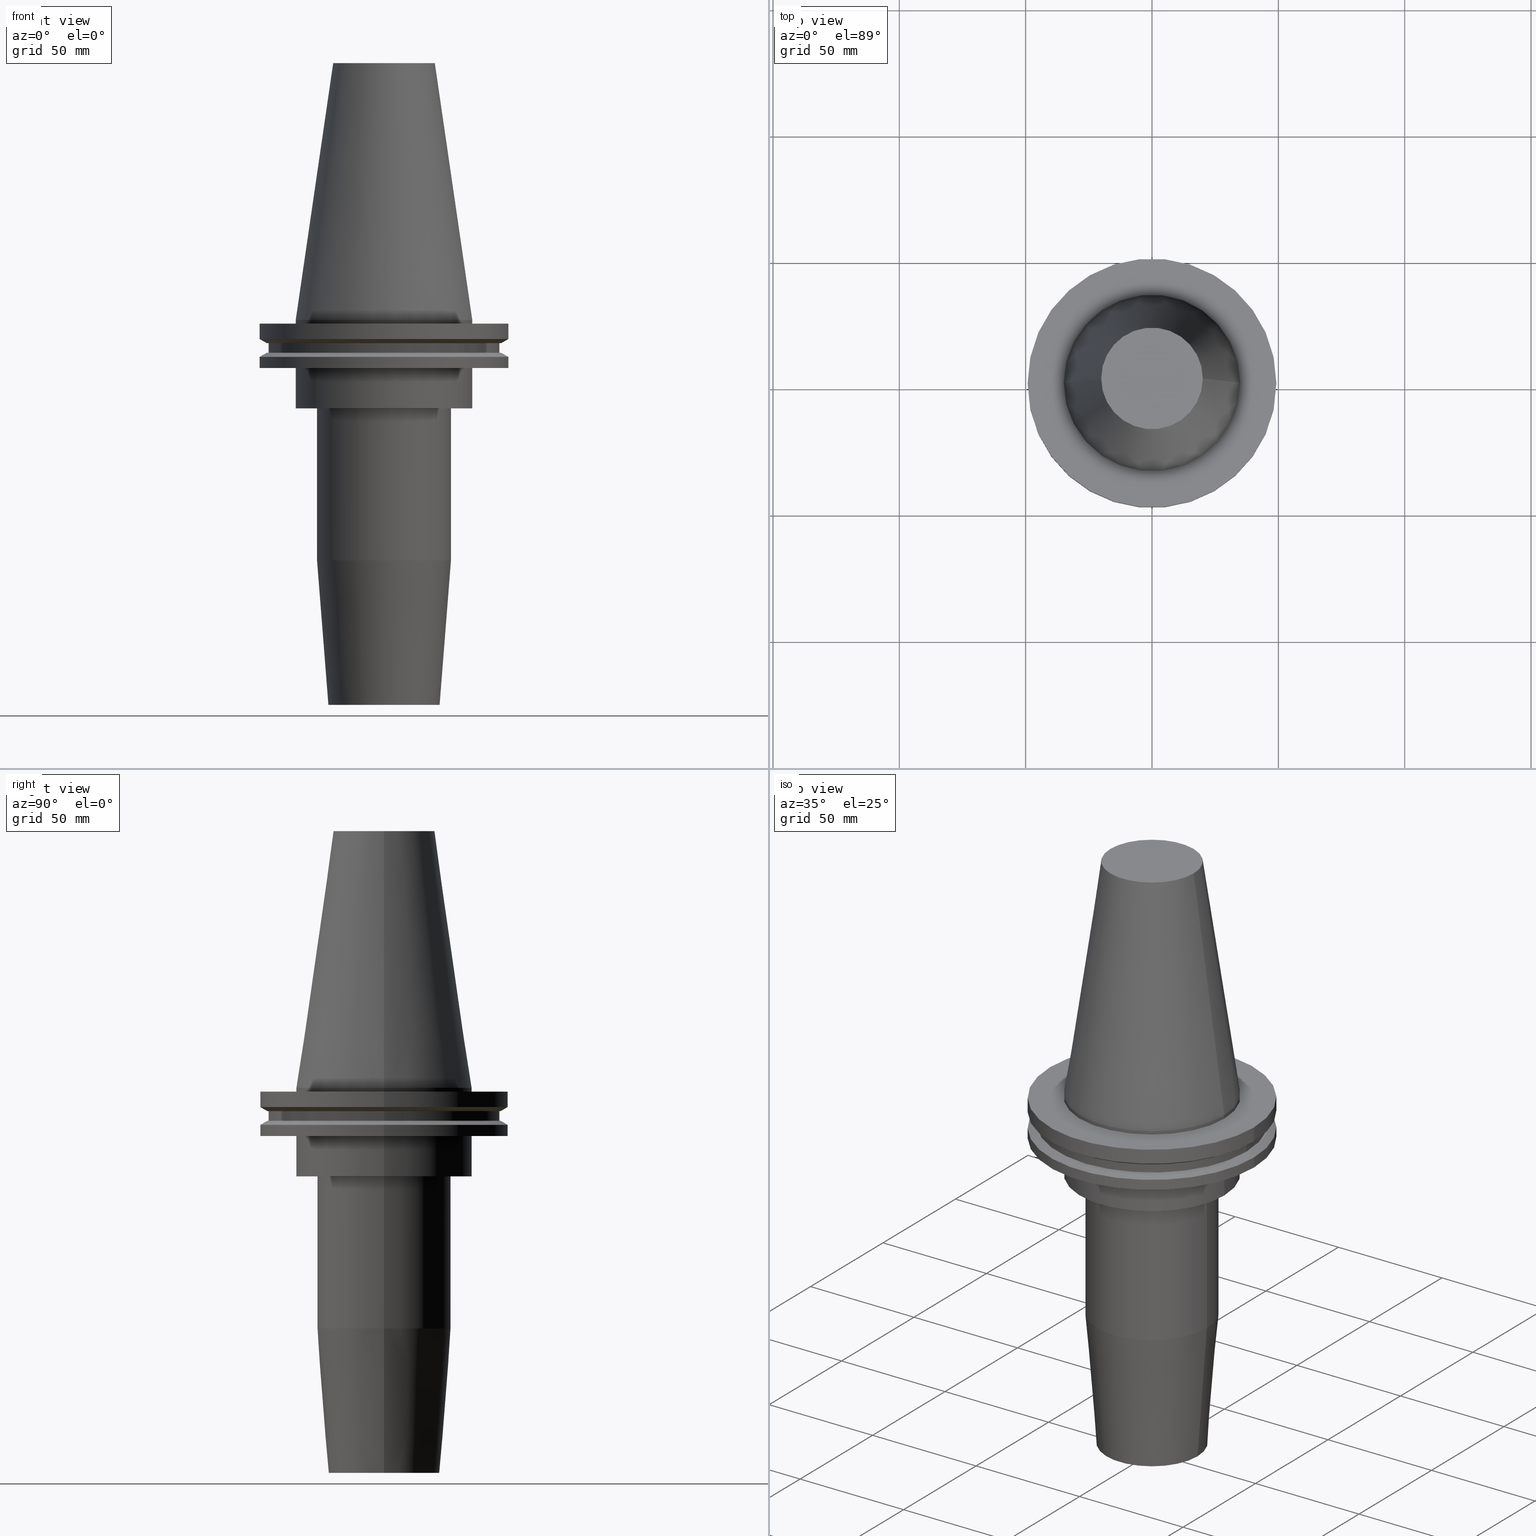
[diagram: canonical four-view strip — front | top / right | iso, engineering-drawing reading convention]
A machine part, canonical four-view strip (front | top / right | iso — engineering-drawing reading convention). The complete STEP part file that produces these views, byte-faithful:
ISO-10303-21;
HEADER;
FILE_DESCRIPTION (( 'STEP AP203' ),
    '1' );
FILE_NAME ('BCV50-SF1_000-6.stp',
    '2022-03-03T17:22:36',
    ( '' ),
    ( '' ),
    'SwSTEP 2.0',
    'SolidWorks 2021',
    '' );
FILE_SCHEMA (( 'CONFIG_CONTROL_DESIGN' ));
ENDSEC;

DATA;
#1 = LINE ( 'NONE', #600, #350 ) ;
#2 = VERTEX_POINT ( 'NONE', #526 ) ;
#3 = PERSON_AND_ORGANIZATION ( #268, #581 ) ;
#4 = ORIENTED_EDGE ( 'NONE', *, *, #688, .F. ) ;
#5 = DIRECTION ( 'NONE',  ( 1.000000000000000000, 0.000000000000000000, 0.000000000000000000 ) ) ;
#6 = CARTESIAN_POINT ( 'NONE',  ( 0.000000000000000000, 0.000000000000000000, -14.65761014474876944 ) ) ;
#7 = CONICAL_SURFACE ( 'NONE', #386, 49.21499999999998920, 1.047197551196554333 ) ;
#8 = AXIS2_PLACEMENT_3D ( 'NONE', #44, #56, #716 ) ;
#9 = CIRCLE ( 'NONE', #306, 49.21499999999999631 ) ;
#10 = LINE ( 'NONE', #65, #804 ) ;
#11 = COORDINATED_UNIVERSAL_TIME_OFFSET ( 6, 0, .BEHIND. ) ;
#12 = DIRECTION ( 'NONE',  ( -0.000000000000000000, -0.000000000000000000, 1.000000000000000000 ) ) ;
#13 = ADVANCED_FACE ( 'NONE', ( #736 ), #7, .T. ) ;
#14 = CYLINDRICAL_SURFACE ( 'NONE', #409, 49.21499999999998920 ) ;
#15 = AXIS2_PLACEMENT_3D ( 'NONE', #219, #735, #89 ) ;
#16 = DIRECTION ( 'NONE',  ( 0.8660254037844169472, 1.060575238724880168E-16, -0.5000000000000375255 ) ) ;
#17 = EDGE_LOOP ( 'NONE', ( #792, #234 ) ) ;
#18 = EDGE_CURVE ( 'NONE', #53, #544, #203, .T. ) ;
#19 = CARTESIAN_POINT ( 'NONE',  ( 0.000000000000000000, 0.000000000000000000, -105.4000000000000199 ) ) ;
#20 = CIRCLE ( 'NONE', #680, 49.21499999999998920 ) ;
#21 = AXIS2_PLACEMENT_3D ( 'NONE', #26, #434, #298 ) ;
#22 = FACE_BOUND ( 'NONE', #313, .T. ) ;
#23 = ORIENTED_EDGE ( 'NONE', *, *, #640, .F. ) ;
#24 = CARTESIAN_POINT ( 'NONE',  ( 34.92499999999999005, 4.277078946022130098E-15, 0.000000000000000000 ) ) ;
#25 = ADVANCED_FACE ( 'NONE', ( #602, #134 ), #282, .F. ) ;
#26 = CARTESIAN_POINT ( 'NONE',  ( 0.000000000000000000, 0.000000000000000000, -35.04999999999999716 ) ) ;
#27 = ORIENTED_EDGE ( 'NONE', *, *, #110, .T. ) ;
#28 = DIRECTION ( 'NONE',  ( -0.000000000000000000, -0.000000000000000000, 1.000000000000000000 ) ) ;
#29 = FACE_OUTER_BOUND ( 'NONE', #835, .T. ) ;
#30 = FACE_BOUND ( 'NONE', #448, .T. ) ;
#31 = ORIENTED_EDGE ( 'NONE', *, *, #237, .F. ) ;
#32 = DIRECTION ( 'NONE',  ( -0.000000000000000000, -0.000000000000000000, 1.000000000000000000 ) ) ;
#33 = PRODUCT_RELATED_PRODUCT_CATEGORY ( 'detail', '', ( #59 ) ) ;
#34 = CARTESIAN_POINT ( 'NONE',  ( 0.000000000000000000, 0.000000000000000000, -9.204999999999991189 ) ) ;
#35 = AXIS2_PLACEMENT_3D ( 'NONE', #708, #329, #700 ) ;
#36 = CARTESIAN_POINT ( 'NONE',  ( 0.000000000000000000, 0.000000000000000000, 0.000000000000000000 ) ) ;
#37 = DIRECTION ( 'NONE',  ( -0.000000000000000000, -0.000000000000000000, 1.000000000000000000 ) ) ;
#38 = DIRECTION ( 'NONE',  ( 1.000000000000000000, 0.000000000000000000, 0.000000000000000000 ) ) ;
#39 = DIRECTION ( 'NONE',  ( -0.8660254037844273833, 1.060575238724893110E-16, 0.5000000000000195399 ) ) ;
#40 = EDGE_CURVE ( 'NONE', #544, #53, #458, .T. ) ;
#41 = DIRECTION ( 'NONE',  ( 1.000000000000000000, 0.000000000000000000, 0.000000000000000000 ) ) ;
#42 = AXIS2_PLACEMENT_3D ( 'NONE', #80, #358, #231 ) ;
#43 = ORIENTED_EDGE ( 'NONE', *, *, #133, .T. ) ;
#44 = CARTESIAN_POINT ( 'NONE',  ( 0.000000000000000000, 0.000000000000000000, 0.000000000000000000 ) ) ;
#45 = APPROVAL_ROLE ( '' ) ;
#46 = VERTEX_POINT ( 'NONE', #533 ) ;
#47 = FACE_BOUND ( 'NONE', #488, .T. ) ;
#48 = ORIENTED_EDGE ( 'NONE', *, *, #791, .F. ) ;
#49 = AXIS2_PLACEMENT_3D ( 'NONE', #436, #816, #229 ) ;
#50 = EDGE_CURVE ( 'NONE', #371, #171, #468, .T. ) ;
#51 = ORIENTED_EDGE ( 'NONE', *, *, #300, .T. ) ;
#52 = CARTESIAN_POINT ( 'NONE',  ( 0.000000000000000000, 0.000000000000000000, -152.4000000000000057 ) ) ;
#53 = VERTEX_POINT ( 'NONE', #210 ) ;
#54 = CYLINDRICAL_SURFACE ( 'NONE', #353, 12.70000000000002061 ) ;
#55 = ORIENTED_EDGE ( 'NONE', *, *, #624, .F. ) ;
#56 = DIRECTION ( 'NONE',  ( -0.000000000000000000, -0.000000000000000000, 1.000000000000000000 ) ) ;
#57 = CC_DESIGN_SECURITY_CLASSIFICATION ( #674, ( #369 ) ) ;
#58 = ORIENTED_EDGE ( 'NONE', *, *, #18, .T. ) ;
#59 = PRODUCT ( 'BCV50-SF1_000-6', 'BCV50-SF1_000-6', '', ( #572 ) ) ;
#60 = CARTESIAN_POINT ( 'NONE',  ( 0.000000000000000000, 0.000000000000000000, -19.04999999999999716 ) ) ;
#61 = AXIS2_PLACEMENT_3D ( 'NONE', #132, #214, #135 ) ;
#62 = VERTEX_POINT ( 'NONE', #472 ) ;
#63 = AXIS2_PLACEMENT_3D ( 'NONE', #790, #590, #464 ) ;
#64 = AXIS2_PLACEMENT_3D ( 'NONE', #34, #691, #98 ) ;
#65 = CARTESIAN_POINT ( 'NONE',  ( 22.00000000000000000, 0.000000000000000000, -152.4000000000000057 ) ) ;
#66 = VERTEX_POINT ( 'NONE', #729 ) ;
#67 = CALENDAR_DATE ( 2022, 3, 3 ) ;
#68 = ADVANCED_FACE ( 'NONE', ( #139 ), #671, .T. ) ;
#69 = ORIENTED_EDGE ( 'NONE', *, *, #640, .T. ) ;
#70 = DIRECTION ( 'NONE',  ( -0.000000000000000000, -0.000000000000000000, 1.000000000000000000 ) ) ;
#71 = ORIENTED_EDGE ( 'NONE', *, *, #594, .F. ) ;
#72 = FACE_OUTER_BOUND ( 'NONE', #255, .T. ) ;
#73 = DIRECTION ( 'NONE',  ( 1.000000000000000000, 0.000000000000000000, 0.000000000000000000 ) ) ;
#74 = AXIS2_PLACEMENT_3D ( 'NONE', #538, #665, #73 ) ;
#75 = VECTOR ( 'NONE', #649, 1000.000000000000000 ) ;
#76 = CIRCLE ( 'NONE', #63, 49.21500000000000341 ) ;
#77 = ADVANCED_FACE ( 'NONE', ( #605 ), #14, .T. ) ;
#78 = FACE_OUTER_BOUND ( 'NONE', #579, .T. ) ;
#79 = CARTESIAN_POINT ( 'NONE',  ( 0.000000000000000000, 0.000000000000000000, 101.5999999999999943 ) ) ;
#80 = CARTESIAN_POINT ( 'NONE',  ( 0.000000000000000000, 0.000000000000000000, -13.05499999999999794 ) ) ;
#81 = LINE ( 'NONE', #607, #669 ) ;
#82 = PLANE ( 'NONE',  #320 ) ;
#83 = PERSON_AND_ORGANIZATION ( #268, #581 ) ;
#84 = CARTESIAN_POINT ( 'NONE',  ( -22.00000000000000000, 2.694222958124176809E-15, -152.4000000000000057 ) ) ;
#85 = CARTESIAN_POINT ( 'NONE',  ( 0.000000000000000000, 0.000000000000000000, 101.5999999999999801 ) ) ;
#86 = ADVANCED_FACE ( 'NONE', ( #673 ), #82, .F. ) ;
#87 = CARTESIAN_POINT ( 'NONE',  ( 0.000000000000000000, 0.000000000000000000, -7.602389855251287187 ) ) ;
#88 = VECTOR ( 'NONE', #703, 1000.000000000000000 ) ;
#89 = DIRECTION ( 'NONE',  ( 1.000000000000000000, 0.000000000000000000, 0.000000000000000000 ) ) ;
#90 = EDGE_LOOP ( 'NONE', ( #548, #705 ) ) ;
#91 = CYLINDRICAL_SURFACE ( 'NONE', #711, 34.92499999999999005 ) ;
#92 = ADVANCED_FACE ( 'NONE', ( #478 ), #242, .T. ) ;
#93 = DIRECTION ( 'NONE',  ( 1.000000000000000000, 0.000000000000000000, 0.000000000000000000 ) ) ;
#94 = DIRECTION ( 'NONE',  ( -0.000000000000000000, -0.000000000000000000, 1.000000000000000000 ) ) ;
#95 = ORIENTED_EDGE ( 'NONE', *, *, #330, .F. ) ;
#96 = CYLINDRICAL_SURFACE ( 'NONE', #626, 12.70000000000002061 ) ;
#97 = FACE_OUTER_BOUND ( 'NONE', #99, .T. ) ;
#98 = DIRECTION ( 'NONE',  ( 1.000000000000000000, 0.000000000000000000, 0.000000000000000000 ) ) ;
#99 = EDGE_LOOP ( 'NONE', ( #272, #331, #800, #598 ) ) ;
#100 = DIRECTION ( 'NONE',  ( 1.000000000000000000, 0.000000000000000000, 0.000000000000000000 ) ) ;
#101 = PRODUCT_DEFINITION ( 'UNKNOWN', '', #369, #367 ) ;
#102 = CARTESIAN_POINT ( 'NONE',  ( 49.21499999999998920, 0.000000000000000000, 101.5999999999999943 ) ) ;
#103 = ORIENTED_EDGE ( 'NONE', *, *, #195, .T. ) ;
#104 = EDGE_CURVE ( 'NONE', #632, #470, #621, .T. ) ;
#105 = AXIS2_PLACEMENT_3D ( 'NONE', #465, #199, #722 ) ;
#106 = CIRCLE ( 'NONE', #217, 49.21499999999998920 ) ;
#107 = CARTESIAN_POINT ( 'NONE',  ( 12.70000000000003304, 0.000000000000000000, -105.4000000000000199 ) ) ;
#108 = DIRECTION ( 'NONE',  ( -0.000000000000000000, -0.000000000000000000, 1.000000000000000000 ) ) ;
#109 = VERTEX_POINT ( 'NONE', #107 ) ;
#110 = EDGE_CURVE ( 'NONE', #504, #853, #709, .T. ) ;
#111 = CARTESIAN_POINT ( 'NONE',  ( 0.000000000000000000, 0.000000000000000000, -152.4000000000000057 ) ) ;
#112 = APPROVAL_STATUS ( 'not_yet_approved' ) ;
#113 = AXIS2_PLACEMENT_3D ( 'NONE', #117, #641, #41 ) ;
#114 = ORIENTED_EDGE ( 'NONE', *, *, #212, .T. ) ;
#115 = CARTESIAN_POINT ( 'NONE',  ( 0.000000000000000000, 0.000000000000000000, -95.22207868720845170 ) ) ;
#116 = ADVANCED_FACE ( 'NONE', ( #821 ), #140, .T. ) ;
#117 = CARTESIAN_POINT ( 'NONE',  ( 0.000000000000000000, 0.000000000000000000, -19.04999999999999716 ) ) ;
#118 = ORIENTED_EDGE ( 'NONE', *, *, #650, .F. ) ;
#119 = FACE_OUTER_BOUND ( 'NONE', #743, .T. ) ;
#120 = EDGE_CURVE ( 'NONE', #632, #371, #187, .T. ) ;
#121 = ORIENTED_EDGE ( 'NONE', *, *, #734, .F. ) ;
#122 = DIRECTION ( 'NONE',  ( 0.000000000000000000, -0.000000000000000000, 1.000000000000000000 ) ) ;
#123 = EDGE_LOOP ( 'NONE', ( #568, #4 ) ) ;
#124 = APPROVAL ( #283, 'UNSPECIFIED' ) ;
#125 = CIRCLE ( 'NONE', #717, 49.21500000000000341 ) ;
#126 = EDGE_LOOP ( 'NONE', ( #252, #782 ) ) ;
#127 = CYLINDRICAL_SURFACE ( 'NONE', #667, 26.50000000000000000 ) ;
#128 = ORIENTED_EDGE ( 'NONE', *, *, #137, .F. ) ;
#129 = LINE ( 'NONE', #275, #777 ) ;
#130 = EDGE_CURVE ( 'NONE', #450, #109, #666, .T. ) ;
#131 = CARTESIAN_POINT ( 'NONE',  ( -45.64500000000000313, 5.589900314708094957E-15, -13.05499999999999794 ) ) ;
#132 = CARTESIAN_POINT ( 'NONE',  ( 0.000000000000000000, 0.000000000000000000, 101.5999999999999943 ) ) ;
#133 = EDGE_CURVE ( 'NONE', #775, #197, #424, .T. ) ;
#134 = FACE_BOUND ( 'NONE', #265, .T. ) ;
#135 = DIRECTION ( 'NONE',  ( 1.000000000000000000, 0.000000000000000000, 0.000000000000000000 ) ) ;
#136 = EDGE_LOOP ( 'NONE', ( #241, #847, #318, #587 ) ) ;
#137 = EDGE_CURVE ( 'NONE', #325, #450, #481, .T. ) ;
#138 = CARTESIAN_POINT ( 'NONE',  ( 26.50000000000000000, 0.000000000000000000, -95.22207868720845170 ) ) ;
#139 = FACE_OUTER_BOUND ( 'NONE', #257, .T. ) ;
#140 = CONICAL_SURFACE ( 'NONE', #157, 22.00000000000000000, 0.07853981633973751431 ) ;
#141 = CIRCLE ( 'NONE', #627, 22.00000000000000000 ) ;
#142 = FACE_OUTER_BOUND ( 'NONE', #523, .T. ) ;
#143 = DIRECTION ( 'NONE',  ( 1.000000000000000000, 0.000000000000000000, 0.000000000000000000 ) ) ;
#144 = FACE_OUTER_BOUND ( 'NONE', #699, .T. ) ;
#145 = CARTESIAN_POINT ( 'NONE',  ( 0.000000000000000000, 45.64500000000000313, -13.05499999999999794 ) ) ;
#146 = VERTEX_POINT ( 'NONE', #830 ) ;
#147 = FACE_BOUND ( 'NONE', #126, .T. ) ;
#148 = CC_DESIGN_PERSON_AND_ORGANIZATION_ASSIGNMENT ( #3, #441, ( #101 ) ) ;
#149 = CARTESIAN_POINT ( 'NONE',  ( 12.70000000000000639, 0.000000000000000000, -152.4000000000000057 ) ) ;
#150 = ORIENTED_EDGE ( 'NONE', *, *, #532, .T. ) ;
#151 = EDGE_CURVE ( 'NONE', #299, #189, #368, .T. ) ;
#152 = DIRECTION ( 'NONE',  ( -0.000000000000000000, -0.000000000000000000, 1.000000000000000000 ) ) ;
#153 = VECTOR ( 'NONE', #39, 1000.000000000000000 ) ;
#154 = CARTESIAN_POINT ( 'NONE',  ( 0.000000000000000000, 0.000000000000000000, -152.4000000000000057 ) ) ;
#155 = AXIS2_PLACEMENT_3D ( 'NONE', #145, #492, #616 ) ;
#156 = CARTESIAN_POINT ( 'NONE',  ( 0.000000000000000000, 0.000000000000000000, -14.65761014474876944 ) ) ;
#157 = AXIS2_PLACEMENT_3D ( 'NONE', #428, #152, #677 ) ;
#158 = DIRECTION ( 'NONE',  ( 0.1443082272672999988, 1.767266086135277066E-17, -0.9895327864921755756 ) ) ;
#159 = CARTESIAN_POINT ( 'NONE',  ( 49.21499999999999631, 0.000000000000000000, 101.5999999999999943 ) ) ;
#160 = DIRECTION ( 'NONE',  ( 1.000000000000000000, 0.000000000000000000, 0.000000000000000000 ) ) ;
#161 = ORIENTED_EDGE ( 'NONE', *, *, #524, .F. ) ;
#162 = CARTESIAN_POINT ( 'NONE',  ( -49.21499999999998920, 6.027099222003697037E-15, -14.65761014474876944 ) ) ;
#163 = CIRCLE ( 'NONE', #42, 46.43919780457007818 ) ;
#164 = CC_DESIGN_APPROVAL ( #235, ( #369 ) ) ;
#165 = EDGE_CURVE ( 'NONE', #2, #66, #687, .T. ) ;
#166 = FACE_OUTER_BOUND ( 'NONE', #455, .T. ) ;
#167 = DIRECTION ( 'NONE',  ( 1.000000000000000000, 0.000000000000000000, 0.000000000000000000 ) ) ;
#168 = APPROVAL_DATE_TIME ( #273, #235 ) ;
#169 = ADVANCED_FACE ( 'NONE', ( #417 ), #96, .F. ) ;
#170 = CIRCLE ( 'NONE', #819, 34.92499999999999716 ) ;
#171 = VERTEX_POINT ( 'NONE', #421 ) ;
#172 = AXIS2_PLACEMENT_3D ( 'NONE', #749, #738, #160 ) ;
#173 = DIRECTION ( 'NONE',  ( -0.000000000000000000, -0.000000000000000000, 1.000000000000000000 ) ) ;
#174 = APPROVAL_STATUS ( 'not_yet_approved' ) ;
#175 = CARTESIAN_POINT ( 'NONE',  ( 0.000000000000000000, 0.000000000000000000, 0.000000000000000000 ) ) ;
#176 = ORIENTED_EDGE ( 'NONE', *, *, #416, .T. ) ;
#177 = DIRECTION ( 'NONE',  ( 1.000000000000000000, 0.000000000000000000, 0.000000000000000000 ) ) ;
#178 = EDGE_CURVE ( 'NONE', #829, #146, #601, .T. ) ;
#179 = AXIS2_PLACEMENT_3D ( 'NONE', #19, #290, #542 ) ;
#180 =( NAMED_UNIT ( * ) PLANE_ANGLE_UNIT ( ) SI_UNIT ( $, .RADIAN. ) );
#181 = ORIENTED_EDGE ( 'NONE', *, *, #195, .F. ) ;
#182 = CARTESIAN_POINT ( 'NONE',  ( 0.000000000000000000, 0.000000000000000000, 0.000000000000000000 ) ) ;
#183 = ADVANCED_FACE ( 'NONE', ( #613 ), #259, .T. ) ;
#184 = ORIENTED_EDGE ( 'NONE', *, *, #532, .F. ) ;
#185 = DIRECTION ( 'NONE',  ( 1.000000000000000000, 0.000000000000000000, 0.000000000000000000 ) ) ;
#186 = ORIENTED_EDGE ( 'NONE', *, *, #560, .T. ) ;
#187 = CIRCLE ( 'NONE', #453, 20.10819343178871321 ) ;
#188 = DIRECTION ( 'NONE',  ( -0.000000000000000000, -0.000000000000000000, 1.000000000000000000 ) ) ;
#189 = VERTEX_POINT ( 'NONE', #162 ) ;
#190 = ORIENTED_EDGE ( 'NONE', *, *, #364, .F. ) ;
#191 = VECTOR ( 'NONE', #485, 1000.000000000000000 ) ;
#192 = ORIENTED_EDGE ( 'NONE', *, *, #480, .F. ) ;
#193 = DIRECTION ( 'NONE',  ( 1.000000000000000000, 0.000000000000000000, 0.000000000000000000 ) ) ;
#194 = VERTEX_POINT ( 'NONE', #431 ) ;
#195 = EDGE_CURVE ( 'NONE', #768, #194, #670, .T. ) ;
#196 = AXIS2_PLACEMENT_3D ( 'NONE', #327, #730, #239 ) ;
#197 = VERTEX_POINT ( 'NONE', #682 ) ;
#198 = DIRECTION ( 'NONE',  ( 1.000000000000000000, 0.000000000000000000, 0.000000000000000000 ) ) ;
#199 = DIRECTION ( 'NONE',  ( 0.000000000000000000, 0.000000000000000000, -1.000000000000000000 ) ) ;
#200 = CARTESIAN_POINT ( 'NONE',  ( 0.000000000000000000, 0.000000000000000000, -9.204999999999991189 ) ) ;
#201 = SHAPE_DEFINITION_REPRESENTATION ( #442, #238 ) ;
#202 = AXIS2_PLACEMENT_3D ( 'NONE', #657, #12, #535 ) ;
#203 = CIRCLE ( 'NONE', #684, 45.64500000000000313 ) ;
#204 = CARTESIAN_POINT ( 'NONE',  ( 0.000000000000000000, 0.000000000000000000, -19.04999999999999716 ) ) ;
#205 = EDGE_CURVE ( 'NONE', #171, #470, #849, .T. ) ;
#206 = ORIENTED_EDGE ( 'NONE', *, *, #411, .T. ) ;
#207 = CONICAL_SURFACE ( 'NONE', #690, 49.21499999999998920, 1.047197551196554333 ) ;
#208 = LINE ( 'NONE', #471, #681 ) ;
#209 = APPROVAL_PERSON_ORGANIZATION ( #452, #261, #511 ) ;
#210 = CARTESIAN_POINT ( 'NONE',  ( -45.64500000000000313, 5.589900314708094957E-15, -9.204999999999991189 ) ) ;
#211 = DATE_TIME_ROLE ( 'classification_date' ) ;
#212 = EDGE_CURVE ( 'NONE', #771, #446, #390, .T. ) ;
#213 = EDGE_LOOP ( 'NONE', ( #512, #43, #663, #536 ) ) ;
#214 = DIRECTION ( 'NONE',  ( -0.000000000000000000, -0.000000000000000000, 1.000000000000000000 ) ) ;
#215 = DIRECTION ( 'NONE',  ( 1.000000000000000000, 0.000000000000000000, 0.000000000000000000 ) ) ;
#216 = CALENDAR_DATE ( 2022, 3, 3 ) ;
#217 = AXIS2_PLACEMENT_3D ( 'NONE', #156, #755, #370 ) ;
#218 = CARTESIAN_POINT ( 'NONE',  ( -34.92499999999999716, 4.277078946022130887E-15, -35.04999999999999716 ) ) ;
#219 = CARTESIAN_POINT ( 'NONE',  ( 0.000000000000000000, 0.000000000000000000, -1.499999999999987566 ) ) ;
#220 = EDGE_LOOP ( 'NONE', ( #340, #103 ) ) ;
#221 = CARTESIAN_POINT ( 'NONE',  ( 0.000000000000000000, 22.00000000000000000, -152.4000000000000057 ) ) ;
#222 = ADVANCED_FACE ( 'NONE', ( #760 ), #91, .T. ) ;
#223 = DIRECTION ( 'NONE',  ( -0.000000000000000000, -0.000000000000000000, 1.000000000000000000 ) ) ;
#224 = ORIENTED_EDGE ( 'NONE', *, *, #336, .T. ) ;
#225 = CARTESIAN_POINT ( 'NONE',  ( 0.000000000000000000, 0.000000000000000000, -35.04999999999999716 ) ) ;
#226 = DIRECTION ( 'NONE',  ( 1.000000000000000000, 0.000000000000000000, 0.000000000000000000 ) ) ;
#227 = PLANE ( 'NONE',  #155 ) ;
#228 = EDGE_LOOP ( 'NONE', ( #51, #651, #295, #459 ) ) ;
#229 = DIRECTION ( 'NONE',  ( 1.000000000000000000, 0.000000000000000000, 0.000000000000000000 ) ) ;
#230 = AXIS2_PLACEMENT_3D ( 'NONE', #79, #352, #143 ) ;
#231 = DIRECTION ( 'NONE',  ( 1.000000000000000000, 0.000000000000000000, 0.000000000000000000 ) ) ;
#232 = CONICAL_SURFACE ( 'NONE', #348, 22.00000000000000000, 0.07853981633973751431 ) ;
#233 = FACE_OUTER_BOUND ( 'NONE', #518, .T. ) ;
#234 = ORIENTED_EDGE ( 'NONE', *, *, #416, .F. ) ;
#235 = APPROVAL ( #112, 'UNSPECIFIED' ) ;
#236 = DIRECTION ( 'NONE',  ( 1.000000000000000000, 0.000000000000000000, 0.000000000000000000 ) ) ;
#237 = EDGE_CURVE ( 'NONE', #194, #768, #9, .T. ) ;
#238 = ADVANCED_BREP_SHAPE_REPRESENTATION ( 'BCV50-SF1_000-6', ( #683, #618 ), #243 ) ;
#239 = DIRECTION ( 'NONE',  ( 1.000000000000000000, 0.000000000000000000, 0.000000000000000000 ) ) ;
#240 = DIRECTION ( 'NONE',  ( 0.000000000000000000, 0.000000000000000000, -1.000000000000000000 ) ) ;
#241 = ORIENTED_EDGE ( 'NONE', *, *, #264, .F. ) ;
#242 = CYLINDRICAL_SURFACE ( 'NONE', #789, 26.50000000000000000 ) ;
#243 =( GEOMETRIC_REPRESENTATION_CONTEXT ( 3 ) GLOBAL_UNCERTAINTY_ASSIGNED_CONTEXT ( ( #578 ) ) GLOBAL_UNIT_ASSIGNED_CONTEXT ( ( #635, #180, #501 ) ) REPRESENTATION_CONTEXT ( 'NONE', 'WORKASPACE' ) );
#244 = DATE_TIME_ROLE ( 'creation_date' ) ;
#245 = ORIENTED_EDGE ( 'NONE', *, *, #588, .T. ) ;
#246 = DIRECTION ( 'NONE',  ( -0.000000000000000000, -0.000000000000000000, 1.000000000000000000 ) ) ;
#247 = CARTESIAN_POINT ( 'NONE',  ( 0.000000000000000000, 0.000000000000000000, 101.5999999999999943 ) ) ;
#248 = ADVANCED_FACE ( 'NONE', ( #47, #519 ), #389, .F. ) ;
#249 = ORIENTED_EDGE ( 'NONE', *, *, #396, .T. ) ;
#250 = CARTESIAN_POINT ( 'NONE',  ( 0.000000000000000000, 0.000000000000000000, -1.499999999999987566 ) ) ;
#251 = ORIENTED_EDGE ( 'NONE', *, *, #274, .F. ) ;
#252 = ORIENTED_EDGE ( 'NONE', *, *, #634, .T. ) ;
#253 = EDGE_CURVE ( 'NONE', #420, #838, #170, .T. ) ;
#254 = DIRECTION ( 'NONE',  ( -0.000000000000000000, -0.000000000000000000, 1.000000000000000000 ) ) ;
#255 = EDGE_LOOP ( 'NONE', ( #184, #462, #825, #181 ) ) ;
#256 = DIRECTION ( 'NONE',  ( 1.000000000000000000, 0.000000000000000000, 0.000000000000000000 ) ) ;
#257 = EDGE_LOOP ( 'NONE', ( #186, #263, #620, #443 ) ) ;
#258 = ORIENTED_EDGE ( 'NONE', *, *, #688, .T. ) ;
#259 = CONICAL_SURFACE ( 'NONE', #746, 34.92499999999999005, 0.1448138465474119452 ) ;
#260 = DIRECTION ( 'NONE',  ( -0.000000000000000000, -0.000000000000000000, 1.000000000000000000 ) ) ;
#261 = APPROVAL ( #174, 'UNSPECIFIED' ) ;
#262 = CIRCLE ( 'NONE', #456, 46.43919780457007818 ) ;
#263 = ORIENTED_EDGE ( 'NONE', *, *, #614, .T. ) ;
#264 = EDGE_CURVE ( 'NONE', #829, #53, #457, .T. ) ;
#265 = EDGE_LOOP ( 'NONE', ( #818, #570 ) ) ;
#266 = DIRECTION ( 'NONE',  ( 1.000000000000000000, 0.000000000000000000, 0.000000000000000000 ) ) ;
#267 = ORIENTED_EDGE ( 'NONE', *, *, #624, .T. ) ;
#268 = PERSON ( 'UNSPECIFIED', 'UNSPECIFIED', 'UNSPECIFIED', ('UNSPECIFIED'), ('UNSPECIFIED'), ('UNSPECIFIED') ) ;
#269 = ADVANCED_FACE ( 'NONE', ( #767 ), #127, .T. ) ;
#270 = CIRCLE ( 'NONE', #812, 12.70000000000000639 ) ;
#271 = LINE ( 'NONE', #277, #612 ) ;
#272 = ORIENTED_EDGE ( 'NONE', *, *, #411, .F. ) ;
#273 = DATE_AND_TIME ( #67, #704 ) ;
#274 = EDGE_CURVE ( 'NONE', #853, #504, #571, .T. ) ;
#275 = CARTESIAN_POINT ( 'NONE',  ( 49.21499999999998920, 6.027099222003697037E-15, -14.65761014474876944 ) ) ;
#276 = AXIS2_PLACEMENT_3D ( 'NONE', #36, #246, #100 ) ;
#277 = CARTESIAN_POINT ( 'NONE',  ( -49.21499999999998920, 0.000000000000000000, -14.65761014474876944 ) ) ;
#278 = DIRECTION ( 'NONE',  ( 0.000000000000000000, 0.000000000000000000, -1.000000000000000000 ) ) ;
#279 = DATE_AND_TIME ( #793, #660 ) ;
#280 = AXIS2_PLACEMENT_3D ( 'NONE', #837, #562, #770 ) ;
#281 = CARTESIAN_POINT ( 'NONE',  ( -12.70000000000003304, 1.555301434917142377E-15, -105.4000000000000199 ) ) ;
#282 = PLANE ( 'NONE',  #74 ) ;
#283 = APPROVAL_STATUS ( 'not_yet_approved' ) ;
#284 = CARTESIAN_POINT ( 'NONE',  ( 49.21500000000000341, 0.000000000000000000, -7.602389855251287187 ) ) ;
#285 = CARTESIAN_POINT ( 'NONE',  ( 0.000000000000000000, 0.000000000000000000, -13.05499999999999794 ) ) ;
#286 = DIRECTION ( 'NONE',  ( -1.000000000000000000, 0.000000000000000000, 0.000000000000000000 ) ) ;
#287 = CC_DESIGN_DATE_AND_TIME_ASSIGNMENT ( #721, #244, ( #101 ) ) ;
#288 = EDGE_CURVE ( 'NONE', #504, #771, #314, .T. ) ;
#289 = AXIS2_PLACEMENT_3D ( 'NONE', #469, #412, #725 ) ;
#290 = DIRECTION ( 'NONE',  ( -0.000000000000000000, -0.000000000000000000, 1.000000000000000000 ) ) ;
#291 = DIRECTION ( 'NONE',  ( 0.8660254037844273833, 0.000000000000000000, 0.5000000000000195399 ) ) ;
#292 = ORIENTED_EDGE ( 'NONE', *, *, #341, .T. ) ;
#293 = DIRECTION ( 'NONE',  ( -1.000000000000000000, 0.000000000000000000, 0.000000000000000000 ) ) ;
#294 = LINE ( 'NONE', #487, #555 ) ;
#295 = ORIENTED_EDGE ( 'NONE', *, *, #719, .F. ) ;
#296 = CIRCLE ( 'NONE', #113, 34.92499999999999716 ) ;
#297 = DIRECTION ( 'NONE',  ( 1.000000000000000000, 0.000000000000000000, 0.000000000000000000 ) ) ;
#298 = DIRECTION ( 'NONE',  ( 1.000000000000000000, 0.000000000000000000, 0.000000000000000000 ) ) ;
#299 = VERTEX_POINT ( 'NONE', #444 ) ;
#300 = EDGE_CURVE ( 'NONE', #576, #299, #20, .T. ) ;
#301 = DIRECTION ( 'NONE',  ( 1.000000000000000000, 0.000000000000000000, 0.000000000000000000 ) ) ;
#302 = VECTOR ( 'NONE', #740, 1000.000000000000000 ) ;
#303 = LINE ( 'NONE', #556, #311 ) ;
#304 = AXIS2_PLACEMENT_3D ( 'NONE', #834, #586, #256 ) ;
#305 = LINE ( 'NONE', #557, #763 ) ;
#306 = AXIS2_PLACEMENT_3D ( 'NONE', #250, #254, #177 ) ;
#307 = CARTESIAN_POINT ( 'NONE',  ( 0.000000000000000000, 0.000000000000000000, 0.000000000000000000 ) ) ;
#308 = COORDINATED_UNIVERSAL_TIME_OFFSET ( 6, 0, .BEHIND. ) ;
#309 = ORIENTED_EDGE ( 'NONE', *, *, #205, .F. ) ;
#310 = DIRECTION ( 'NONE',  ( -0.000000000000000000, -0.000000000000000000, 1.000000000000000000 ) ) ;
#311 = VECTOR ( 'NONE', #486, 1000.000000000000000 ) ;
#312 = LOCAL_TIME ( 11, 22, 36.00000000000000000, #758 ) ;
#313 = EDGE_LOOP ( 'NONE', ( #642, #58 ) ) ;
#314 = LINE ( 'NONE', #772, #517 ) ;
#315 = ORIENTED_EDGE ( 'NONE', *, *, #650, .T. ) ;
#316 = ADVANCED_FACE ( 'NONE', ( #440 ), #449, .T. ) ;
#317 = PERSON_AND_ORGANIZATION ( #268, #581 ) ;
#318 = ORIENTED_EDGE ( 'NONE', *, *, #524, .T. ) ;
#319 = DIRECTION ( 'NONE',  ( 1.000000000000000000, 0.000000000000000000, 0.000000000000000000 ) ) ;
#320 = AXIS2_PLACEMENT_3D ( 'NONE', #357, #807, #608 ) ;
#321 = ORIENTED_EDGE ( 'NONE', *, *, #396, .F. ) ;
#322 = CC_DESIGN_PERSON_AND_ORGANIZATION_ASSIGNMENT ( #83, #539, ( #674 ) ) ;
#323 = ORIENTED_EDGE ( 'NONE', *, *, #120, .F. ) ;
#324 = DIRECTION ( 'NONE',  ( 1.000000000000000000, 0.000000000000000000, 0.000000000000000000 ) ) ;
#325 = VERTEX_POINT ( 'NONE', #645 ) ;
#326 = APPROVAL_PERSON_ORGANIZATION ( #656, #235, #45 ) ;
#327 = CARTESIAN_POINT ( 'NONE',  ( 0.000000000000000000, 0.000000000000000000, -14.65761014474876944 ) ) ;
#328 = EDGE_LOOP ( 'NONE', ( #394, #121, #499, #840 ) ) ;
#329 = DIRECTION ( 'NONE',  ( -0.000000000000000000, -0.000000000000000000, 1.000000000000000000 ) ) ;
#330 = EDGE_CURVE ( 'NONE', #470, #171, #437, .T. ) ;
#331 = ORIENTED_EDGE ( 'NONE', *, *, #422, .T. ) ;
#332 = EDGE_LOOP ( 'NONE', ( #128, #707, #292, #398 ) ) ;
#333 = CIRCLE ( 'NONE', #820, 46.43919780457007818 ) ;
#334 = CARTESIAN_POINT ( 'NONE',  ( 0.000000000000000000, 0.000000000000000000, -19.04999999999999716 ) ) ;
#335 = CONICAL_SURFACE ( 'NONE', #337, 34.92499999999999005, 0.1448138465474119452 ) ;
#336 = EDGE_CURVE ( 'NONE', #371, #632, #761, .T. ) ;
#337 = AXIS2_PLACEMENT_3D ( 'NONE', #547, #622, #813 ) ;
#338 = ORIENTED_EDGE ( 'NONE', *, *, #723, .F. ) ;
#339 = DIRECTION ( 'NONE',  ( 0.07845909572783764385, 0.000000000000000000, 0.9969173337331286300 ) ) ;
#340 = ORIENTED_EDGE ( 'NONE', *, *, #237, .T. ) ;
#341 = EDGE_CURVE ( 'NONE', #623, #109, #839, .T. ) ;
#342 = CARTESIAN_POINT ( 'NONE',  ( 0.000000000000000000, 0.000000000000000000, -13.05499999999999794 ) ) ;
#343 = DIRECTION ( 'NONE',  ( -0.000000000000000000, -0.000000000000000000, 1.000000000000000000 ) ) ;
#344 = APPROVAL_DATE_TIME ( #473, #124 ) ;
#345 = ADVANCED_FACE ( 'NONE', ( #119 ), #232, .T. ) ;
#346 = CARTESIAN_POINT ( 'NONE',  ( -34.92499999999999005, 4.277078946022130098E-15, -1.499999999999987566 ) ) ;
#347 = AXIS2_PLACEMENT_3D ( 'NONE', #378, #360, #167 ) ;
#348 = AXIS2_PLACEMENT_3D ( 'NONE', #52, #583, #324 ) ;
#349 = DIRECTION ( 'NONE',  ( 1.000000000000000000, 0.000000000000000000, 0.000000000000000000 ) ) ;
#350 = VECTOR ( 'NONE', #794, 1000.000000000000000 ) ;
#351 = DIRECTION ( 'NONE',  ( 1.000000000000000000, 0.000000000000000000, 0.000000000000000000 ) ) ;
#352 = DIRECTION ( 'NONE',  ( -0.000000000000000000, -0.000000000000000000, 1.000000000000000000 ) ) ;
#353 = AXIS2_PLACEMENT_3D ( 'NONE', #175, #108, #185 ) ;
#354 = DIRECTION ( 'NONE',  ( -0.8660254037844169472, 0.000000000000000000, -0.5000000000000375255 ) ) ;
#355 = APPROVAL_PERSON_ORGANIZATION ( #801, #124, #414 ) ;
#356 = EDGE_CURVE ( 'NONE', #197, #838, #580, .T. ) ;
#357 = CARTESIAN_POINT ( 'NONE',  ( 0.000000000000000000, 12.70000000000003304, -105.4000000000000199 ) ) ;
#358 = DIRECTION ( 'NONE',  ( -0.000000000000000000, -0.000000000000000000, 1.000000000000000000 ) ) ;
#359 = CARTESIAN_POINT ( 'NONE',  ( 0.000000000000000000, 0.000000000000000000, -1.499999999999987566 ) ) ;
#360 = DIRECTION ( 'NONE',  ( -0.000000000000000000, -0.000000000000000000, 1.000000000000000000 ) ) ;
#361 = CARTESIAN_POINT ( 'NONE',  ( 46.43919780457007818, 0.000000000000000000, -9.204999999999991189 ) ) ;
#362 = ORIENTED_EDGE ( 'NONE', *, *, #439, .T. ) ;
#363 = CARTESIAN_POINT ( 'NONE',  ( 0.000000000000000000, 0.000000000000000000, 101.5999999999999943 ) ) ;
#364 = EDGE_CURVE ( 'NONE', #62, #410, #554, .T. ) ;
#365 = CARTESIAN_POINT ( 'NONE',  ( 0.000000000000000000, 0.000000000000000000, -35.04999999999999716 ) ) ;
#366 = ORIENTED_EDGE ( 'NONE', *, *, #661, .F. ) ;
#367 = DESIGN_CONTEXT ( 'detailed design', #752, 'design' ) ;
#368 = LINE ( 'NONE', #745, #302 ) ;
#369 = PRODUCT_DEFINITION_FORMATION_WITH_SPECIFIED_SOURCE ( 'ANY', '', #59, .NOT_KNOWN. ) ;
#370 = DIRECTION ( 'NONE',  ( 1.000000000000000000, 0.000000000000000000, 0.000000000000000000 ) ) ;
#371 = VERTEX_POINT ( 'NONE', #505 ) ;
#372 = CARTESIAN_POINT ( 'NONE',  ( 0.000000000000000000, 0.000000000000000000, -13.05499999999999794 ) ) ;
#373 = AXIS2_PLACEMENT_3D ( 'NONE', #549, #28, #559 ) ;
#374 = CARTESIAN_POINT ( 'NONE',  ( 0.000000000000000000, 0.000000000000000000, 101.5999999999999943 ) ) ;
#375 = CIRCLE ( 'NONE', #852, 34.92499999999999005 ) ;
#376 = FACE_OUTER_BOUND ( 'NONE', #846, .T. ) ;
#377 = VERTEX_POINT ( 'NONE', #854 ) ;
#378 = CARTESIAN_POINT ( 'NONE',  ( 0.000000000000000000, 0.000000000000000000, -95.22207868720845170 ) ) ;
#379 = ORIENTED_EDGE ( 'NONE', *, *, #151, .F. ) ;
#380 = FACE_OUTER_BOUND ( 'NONE', #220, .T. ) ;
#381 = EDGE_CURVE ( 'NONE', #410, #62, #141, .T. ) ;
#382 = AXIS2_PLACEMENT_3D ( 'NONE', #247, #631, #385 ) ;
#383 = ORIENTED_EDGE ( 'NONE', *, *, #165, .F. ) ;
#384 = DIRECTION ( 'NONE',  ( -0.000000000000000000, -0.000000000000000000, 1.000000000000000000 ) ) ;
#385 = DIRECTION ( 'NONE',  ( 1.000000000000000000, 0.000000000000000000, 0.000000000000000000 ) ) ;
#386 = AXIS2_PLACEMENT_3D ( 'NONE', #6, #278, #286 ) ;
#387 = EDGE_LOOP ( 'NONE', ( #245, #362, #95, #366 ) ) ;
#388 = CIRCLE ( 'NONE', #788, 49.21499999999998920 ) ;
#389 = PLANE ( 'NONE',  #851 ) ;
#390 = CIRCLE ( 'NONE', #774, 26.50000000000000000 ) ;
#391 = ADVANCED_FACE ( 'NONE', ( #522, #380 ), #668, .F. ) ;
#392 = ORIENTED_EDGE ( 'NONE', *, *, #566, .F. ) ;
#393 = DIRECTION ( 'NONE',  ( -0.000000000000000000, -0.000000000000000000, 1.000000000000000000 ) ) ;
#394 = ORIENTED_EDGE ( 'NONE', *, *, #422, .F. ) ;
#395 = ORIENTED_EDGE ( 'NONE', *, *, #480, .T. ) ;
#396 = EDGE_CURVE ( 'NONE', #146, #829, #584, .T. ) ;
#397 = DIRECTION ( 'NONE',  ( 1.000000000000000000, 0.000000000000000000, 0.000000000000000000 ) ) ;
#398 = ORIENTED_EDGE ( 'NONE', *, *, #753, .T. ) ;
#399 = CYLINDRICAL_SURFACE ( 'NONE', #423, 34.92499999999999716 ) ;
#400 = CONICAL_SURFACE ( 'NONE', #289, 46.43919780457007818, 1.047197551196575205 ) ;
#401 = VECTOR ( 'NONE', #419, 999.9999999999998863 ) ;
#402 = ADVANCED_FACE ( 'NONE', ( #78 ), #720, .T. ) ;
#403 = CARTESIAN_POINT ( 'NONE',  ( -26.50000000000000000, 3.245314017740485765E-15, -35.04999999999999716 ) ) ;
#404 = CC_DESIGN_PERSON_AND_ORGANIZATION_ASSIGNMENT ( #733, #534, ( #369 ) ) ;
#405 = ORIENTED_EDGE ( 'NONE', *, *, #130, .T. ) ;
#406 = CARTESIAN_POINT ( 'NONE',  ( -22.00000000000000000, 2.969768487932331287E-15, -152.4000000000000057 ) ) ;
#407 = ORIENTED_EDGE ( 'NONE', *, *, #288, .T. ) ;
#408 = DIRECTION ( 'NONE',  ( -0.000000000000000000, -0.000000000000000000, 1.000000000000000000 ) ) ;
#409 = AXIS2_PLACEMENT_3D ( 'NONE', #476, #732, #413 ) ;
#410 = VERTEX_POINT ( 'NONE', #406 ) ;
#411 = EDGE_CURVE ( 'NONE', #644, #510, #333, .T. ) ;
#412 = DIRECTION ( 'NONE',  ( -0.000000000000000000, -0.000000000000000000, 1.000000000000000000 ) ) ;
#413 = DIRECTION ( 'NONE',  ( 1.000000000000000000, 0.000000000000000000, 0.000000000000000000 ) ) ;
#414 = APPROVAL_ROLE ( '' ) ;
#415 = PLANE ( 'NONE',  #502 ) ;
#416 = EDGE_CURVE ( 'NONE', #299, #576, #388, .T. ) ;
#417 = FACE_OUTER_BOUND ( 'NONE', #702, .T. ) ;
#418 = DIRECTION ( 'NONE',  ( 0.000000000000000000, -0.000000000000000000, 1.000000000000000000 ) ) ;
#419 = DIRECTION ( 'NONE',  ( -0.07845909572783764385, 9.608468044709212160E-18, 0.9969173337331286300 ) ) ;
#420 = VERTEX_POINT ( 'NONE', #603 ) ;
#421 = CARTESIAN_POINT ( 'NONE',  ( -34.92499999999999005, 0.000000000000000000, 0.000000000000000000 ) ) ;
#422 = EDGE_CURVE ( 'NONE', #644, #46, #129, .T. ) ;
#423 = AXIS2_PLACEMENT_3D ( 'NONE', #654, #531, #731 ) ;
#424 = CIRCLE ( 'NONE', #49, 34.92499999999999716 ) ;
#425 = DIRECTION ( 'NONE',  ( -1.000000000000000000, 0.000000000000000000, 0.000000000000000000 ) ) ;
#426 = CARTESIAN_POINT ( 'NONE',  ( -34.92499999999999716, 4.277078946022130887E-15, 101.5999999999999943 ) ) ;
#427 = ORIENTED_EDGE ( 'NONE', *, *, #381, .F. ) ;
#428 = CARTESIAN_POINT ( 'NONE',  ( 0.000000000000000000, 0.000000000000000000, -152.4000000000000057 ) ) ;
#429 = CARTESIAN_POINT ( 'NONE',  ( 49.21499999999998920, 0.000000000000000000, -19.04999999999999716 ) ) ;
#430 = VERTEX_POINT ( 'NONE', #346 ) ;
#431 = CARTESIAN_POINT ( 'NONE',  ( 49.21499999999999631, 0.000000000000000000, -1.499999999999987566 ) ) ;
#432 = LOCAL_TIME ( 11, 22, 36.00000000000000000, #308 ) ;
#433 = APPLICATION_PROTOCOL_DEFINITION ( 'international standard', 'config_control_design', 1994, #752 ) ;
#434 = DIRECTION ( 'NONE',  ( -0.000000000000000000, -0.000000000000000000, 1.000000000000000000 ) ) ;
#435 = ORIENTED_EDGE ( 'NONE', *, *, #40, .F. ) ;
#436 = CARTESIAN_POINT ( 'NONE',  ( 0.000000000000000000, 0.000000000000000000, -35.04999999999999716 ) ) ;
#437 = CIRCLE ( 'NONE', #8, 34.92499999999999005 ) ;
#438 = CIRCLE ( 'NONE', #64, 46.43919780457007818 ) ;
#439 = EDGE_CURVE ( 'NONE', #430, #171, #1, .T. ) ;
#440 = FACE_OUTER_BOUND ( 'NONE', #850, .T. ) ;
#441 = PERSON_AND_ORGANIZATION_ROLE ( 'creator' ) ;
#442 = PRODUCT_DEFINITION_SHAPE ( 'NONE', 'NONE',  #101 ) ;
#443 = ORIENTED_EDGE ( 'NONE', *, *, #356, .F. ) ;
#444 = CARTESIAN_POINT ( 'NONE',  ( -49.21499999999998920, 6.027099222003697037E-15, -19.04999999999999716 ) ) ;
#445 = CONICAL_SURFACE ( 'NONE', #463, 46.43919780457007818, 1.047197551196575205 ) ;
#446 = VERTEX_POINT ( 'NONE', #403 ) ;
#447 = FACE_OUTER_BOUND ( 'NONE', #136, .T. ) ;
#448 = EDGE_LOOP ( 'NONE', ( #321, #762 ) ) ;
#449 = CYLINDRICAL_SURFACE ( 'NONE', #639, 49.21499999999999631 ) ;
#450 = VERTEX_POINT ( 'NONE', #281 ) ;
#451 = ADVANCED_FACE ( 'NONE', ( #72 ), #783, .T. ) ;
#452 = PERSON_AND_ORGANIZATION ( #268, #581 ) ;
#453 = AXIS2_PLACEMENT_3D ( 'NONE', #85, #32, #297 ) ;
#454 = VECTOR ( 'NONE', #260, 1000.000000000000000 ) ;
#455 = EDGE_LOOP ( 'NONE', ( #323, #843, #530, #521 ) ) ;
#456 = AXIS2_PLACEMENT_3D ( 'NONE', #728, #70, #198 ) ;
#457 = LINE ( 'NONE', #569, #88 ) ;
#458 = CIRCLE ( 'NONE', #597, 45.64500000000000313 ) ;
#459 = ORIENTED_EDGE ( 'NONE', *, *, #604, .F. ) ;
#460 = ORIENTED_EDGE ( 'NONE', *, *, #776, .F. ) ;
#461 = CARTESIAN_POINT ( 'NONE',  ( 12.70000000000002061, 0.000000000000000000, 0.000000000000000000 ) ) ;
#462 = ORIENTED_EDGE ( 'NONE', *, *, #496, .T. ) ;
#463 = AXIS2_PLACEMENT_3D ( 'NONE', #629, #679, #38 ) ;
#464 = DIRECTION ( 'NONE',  ( 1.000000000000000000, 0.000000000000000000, 0.000000000000000000 ) ) ;
#465 = CARTESIAN_POINT ( 'NONE',  ( 0.000000000000000000, 49.21499999999999631, -1.499999999999992895 ) ) ;
#466 = ADVANCED_FACE ( 'NONE', ( #528 ), #399, .T. ) ;
#467 = CLOSED_SHELL ( 'NONE', ( #169, #345, #269, #222, #316, #509, #785, #802, #77, #68, #599, #183, #573, #248, #466, #25, #815, #13, #541, #831, #693, #676, #451, #391, #402, #92, #116, #766, #714, #86 ) ) ;
#468 = LINE ( 'NONE', #596, #822 ) ;
#469 = CARTESIAN_POINT ( 'NONE',  ( 0.000000000000000000, 0.000000000000000000, -9.204999999999991189 ) ) ;
#470 = VERTEX_POINT ( 'NONE', #799 ) ;
#471 = CARTESIAN_POINT ( 'NONE',  ( 45.64500000000000313, 0.000000000000000000, 101.5999999999999943 ) ) ;
#472 = CARTESIAN_POINT ( 'NONE',  ( 22.00000000000000000, 0.000000000000000000, -152.4000000000000057 ) ) ;
#473 = DATE_AND_TIME ( #216, #662 ) ;
#474 = EDGE_CURVE ( 'NONE', #62, #504, #10, .T. ) ;
#475 = DIRECTION ( 'NONE',  ( -0.000000000000000000, -0.000000000000000000, 1.000000000000000000 ) ) ;
#476 = CARTESIAN_POINT ( 'NONE',  ( 0.000000000000000000, 0.000000000000000000, 101.5999999999999943 ) ) ;
#477 = FACE_OUTER_BOUND ( 'NONE', #784, .T. ) ;
#478 = FACE_OUTER_BOUND ( 'NONE', #552, .T. ) ;
#479 = DIRECTION ( 'NONE',  ( 1.000000000000000000, 0.000000000000000000, 0.000000000000000000 ) ) ;
#480 = EDGE_CURVE ( 'NONE', #563, #2, #262, .T. ) ;
#481 = LINE ( 'NONE', #695, #191 ) ;
#482 = CARTESIAN_POINT ( 'NONE',  ( 26.50000000000000000, 0.000000000000000000, -35.04999999999999716 ) ) ;
#483 = CARTESIAN_POINT ( 'NONE',  ( 45.64500000000000313, 0.000000000000000000, -9.204999999999991189 ) ) ;
#484 = ORIENTED_EDGE ( 'NONE', *, *, #341, .F. ) ;
#485 = DIRECTION ( 'NONE',  ( -0.000000000000000000, -0.000000000000000000, 1.000000000000000000 ) ) ;
#486 = DIRECTION ( 'NONE',  ( -0.000000000000000000, -0.000000000000000000, 1.000000000000000000 ) ) ;
#487 = CARTESIAN_POINT ( 'NONE',  ( 46.43919780457007818, 0.000000000000000000, -9.204999999999991189 ) ) ;
#488 = EDGE_LOOP ( 'NONE', ( #114, #267 ) ) ;
#489 = APPLICATION_CONTEXT ( 'configuration controlled 3d designs of mechanical parts and assemblies' ) ;
#490 = CARTESIAN_POINT ( 'NONE',  ( 0.000000000000000000, 0.000000000000000000, 0.000000000000000000 ) ) ;
#491 = DIRECTION ( 'NONE',  ( 0.000000000000000000, 0.000000000000000000, -1.000000000000000000 ) ) ;
#492 = DIRECTION ( 'NONE',  ( 0.000000000000000000, 0.000000000000000000, -1.000000000000000000 ) ) ;
#493 = ORIENTED_EDGE ( 'NONE', *, *, #439, .F. ) ;
#494 = DIRECTION ( 'NONE',  ( -0.000000000000000000, -0.000000000000000000, 1.000000000000000000 ) ) ;
#495 = CC_DESIGN_PERSON_AND_ORGANIZATION_ASSIGNMENT ( #567, #787, ( #59 ) ) ;
#496 = EDGE_CURVE ( 'NONE', #66, #765, #76, .T. ) ;
#497 = COORDINATED_UNIVERSAL_TIME_OFFSET ( 6, 0, .BEHIND. ) ;
#498 = FACE_OUTER_BOUND ( 'NONE', #332, .T. ) ;
#499 = ORIENTED_EDGE ( 'NONE', *, *, #514, .T. ) ;
#500 = DIRECTION ( 'NONE',  ( -0.000000000000000000, -0.000000000000000000, 1.000000000000000000 ) ) ;
#501 =( NAMED_UNIT ( * ) SI_UNIT ( $, .STERADIAN. ) SOLID_ANGLE_UNIT ( ) );
#502 = AXIS2_PLACEMENT_3D ( 'NONE', #551, #240, #686 ) ;
#503 = VECTOR ( 'NONE', #817, 1000.000000000000000 ) ;
#504 = VERTEX_POINT ( 'NONE', #138 ) ;
#505 = CARTESIAN_POINT ( 'NONE',  ( -20.10819343178871321, 0.000000000000000000, 101.5999999999999801 ) ) ;
#506 = CARTESIAN_POINT ( 'NONE',  ( -26.50000000000000000, 3.245314017740485765E-15, -95.22207868720845170 ) ) ;
#507 = ORIENTED_EDGE ( 'NONE', *, *, #50, .T. ) ;
#508 = CARTESIAN_POINT ( 'NONE',  ( 0.000000000000000000, 34.92499999999999716, -35.04999999999999716 ) ) ;
#509 = ADVANCED_FACE ( 'NONE', ( #142 ), #400, .T. ) ;
#510 = VERTEX_POINT ( 'NONE', #672 ) ;
#511 = APPROVAL_ROLE ( '' ) ;
#512 = ORIENTED_EDGE ( 'NONE', *, *, #614, .F. ) ;
#513 = DIRECTION ( 'NONE',  ( -0.000000000000000000, -0.000000000000000000, 1.000000000000000000 ) ) ;
#514 = EDGE_CURVE ( 'NONE', #510, #189, #271, .T. ) ;
#515 = EDGE_LOOP ( 'NONE', ( #779, #814, #507, #718 ) ) ;
#516 = VECTOR ( 'NONE', #158, 999.9999999999998863 ) ;
#517 = VECTOR ( 'NONE', #393, 1000.000000000000000 ) ;
#518 = EDGE_LOOP ( 'NONE', ( #224, #655 ) ) ;
#519 = FACE_OUTER_BOUND ( 'NONE', #759, .T. ) ;
#520 = ORIENTED_EDGE ( 'NONE', *, *, #560, .F. ) ;
#521 = ORIENTED_EDGE ( 'NONE', *, *, #50, .F. ) ;
#522 = FACE_BOUND ( 'NONE', #123, .T. ) ;
#523 = EDGE_LOOP ( 'NONE', ( #395, #646, #460, #392 ) ) ;
#524 = EDGE_CURVE ( 'NONE', #146, #544, #208, .T. ) ;
#525 = DIRECTION ( 'NONE',  ( 1.000000000000000000, 0.000000000000000000, 0.000000000000000000 ) ) ;
#526 = CARTESIAN_POINT ( 'NONE',  ( -46.43919780457007818, 5.857130358318727293E-15, -9.204999999999991189 ) ) ;
#527 = CYLINDRICAL_SURFACE ( 'NONE', #382, 49.21499999999998920 ) ;
#528 = FACE_OUTER_BOUND ( 'NONE', #213, .T. ) ;
#529 = AXIS2_PLACEMENT_3D ( 'NONE', #372, #553, #236 ) ;
#530 = ORIENTED_EDGE ( 'NONE', *, *, #330, .T. ) ;
#531 = DIRECTION ( 'NONE',  ( -0.000000000000000000, -0.000000000000000000, 1.000000000000000000 ) ) ;
#532 = EDGE_CURVE ( 'NONE', #66, #768, #81, .T. ) ;
#533 = CARTESIAN_POINT ( 'NONE',  ( 49.21499999999998920, 0.000000000000000000, -14.65761014474876944 ) ) ;
#534 = PERSON_AND_ORGANIZATION_ROLE ( 'design_supplier' ) ;
#535 = DIRECTION ( 'NONE',  ( 1.000000000000000000, 0.000000000000000000, 0.000000000000000000 ) ) ;
#536 = ORIENTED_EDGE ( 'NONE', *, *, #253, .F. ) ;
#537 = DIRECTION ( 'NONE',  ( -0.000000000000000000, -0.000000000000000000, 1.000000000000000000 ) ) ;
#538 = CARTESIAN_POINT ( 'NONE',  ( 0.000000000000000000, 49.21499999999998920, -19.04999999999999716 ) ) ;
#539 = PERSON_AND_ORGANIZATION_ROLE ( 'classification_officer' ) ;
#540 = CIRCLE ( 'NONE', #172, 12.70000000000000639 ) ;
#541 = ADVANCED_FACE ( 'NONE', ( #30, #477 ), #227, .F. ) ;
#542 = DIRECTION ( 'NONE',  ( 1.000000000000000000, 0.000000000000000000, 0.000000000000000000 ) ) ;
#543 = LINE ( 'NONE', #426, #503 ) ;
#544 = VERTEX_POINT ( 'NONE', #483 ) ;
#545 = DIRECTION ( 'NONE',  ( -0.000000000000000000, -0.000000000000000000, 1.000000000000000000 ) ) ;
#546 = DIRECTION ( 'NONE',  ( -0.000000000000000000, -0.000000000000000000, 1.000000000000000000 ) ) ;
#547 = CARTESIAN_POINT ( 'NONE',  ( 0.000000000000000000, 0.000000000000000000, 0.000000000000000000 ) ) ;
#548 = ORIENTED_EDGE ( 'NONE', *, *, #753, .F. ) ;
#549 = CARTESIAN_POINT ( 'NONE',  ( 0.000000000000000000, 0.000000000000000000, -105.4000000000000199 ) ) ;
#550 = LINE ( 'NONE', #159, #633 ) ;
#551 = CARTESIAN_POINT ( 'NONE',  ( 0.000000000000000000, 20.10819343178871321, 101.5999999999999943 ) ) ;
#552 = EDGE_LOOP ( 'NONE', ( #338, #611, #407, #55 ) ) ;
#553 = DIRECTION ( 'NONE',  ( -0.000000000000000000, -0.000000000000000000, 1.000000000000000000 ) ) ;
#554 = CIRCLE ( 'NONE', #304, 22.00000000000000000 ) ;
#555 = VECTOR ( 'NONE', #291, 1000.000000000000000 ) ;
#556 = CARTESIAN_POINT ( 'NONE',  ( -26.50000000000000000, 3.245314017740485765E-15, 0.000000000000000000 ) ) ;
#557 = CARTESIAN_POINT ( 'NONE',  ( 34.92499999999999005, 0.000000000000000000, 101.5999999999999943 ) ) ;
#558 = ORIENTED_EDGE ( 'NONE', *, *, #566, .T. ) ;
#559 = DIRECTION ( 'NONE',  ( 1.000000000000000000, 0.000000000000000000, 0.000000000000000000 ) ) ;
#560 = EDGE_CURVE ( 'NONE', #197, #775, #744, .T. ) ;
#561 = DIRECTION ( 'NONE',  ( 0.000000000000000000, 0.000000000000000000, 1.000000000000000000 ) ) ;
#562 = DIRECTION ( 'NONE',  ( 0.000000000000000000, -0.000000000000000000, 1.000000000000000000 ) ) ;
#563 = VERTEX_POINT ( 'NONE', #361 ) ;
#564 = CARTESIAN_POINT ( 'NONE',  ( 0.000000000000000000, 0.000000000000000000, 0.000000000000000000 ) ) ;
#565 = CC_DESIGN_APPROVAL ( #261, ( #101 ) ) ;
#566 = EDGE_CURVE ( 'NONE', #563, #765, #294, .T. ) ;
#567 = PERSON_AND_ORGANIZATION ( #268, #581 ) ;
#568 = ORIENTED_EDGE ( 'NONE', *, *, #588, .F. ) ;
#569 = CARTESIAN_POINT ( 'NONE',  ( -45.64500000000000313, 5.589900314708094957E-15, 101.5999999999999943 ) ) ;
#570 = ORIENTED_EDGE ( 'NONE', *, *, #253, .T. ) ;
#571 = CIRCLE ( 'NONE', #710, 26.50000000000000000 ) ;
#572 = MECHANICAL_CONTEXT ( 'NONE', #489, 'mechanical' ) ;
#573 = ADVANCED_FACE ( 'NONE', ( #233 ), #415, .F. ) ;
#574 = ORIENTED_EDGE ( 'NONE', *, *, #734, .T. ) ;
#575 = DIRECTION ( 'NONE',  ( 1.000000000000000000, 0.000000000000000000, 0.000000000000000000 ) ) ;
#576 = VERTEX_POINT ( 'NONE', #429 ) ;
#577 = CARTESIAN_POINT ( 'NONE',  ( 0.000000000000000000, 0.000000000000000000, 0.000000000000000000 ) ) ;
#578 = UNCERTAINTY_MEASURE_WITH_UNIT (LENGTH_MEASURE( 1.000000000000000082E-05 ), #635, 'distance_accuracy_value', 'NONE');
#579 = EDGE_LOOP ( 'NONE', ( #493, #258, #855, #309 ) ) ;
#580 = LINE ( 'NONE', #848, #454 ) ;
#581 = ORGANIZATION ( 'UNSPECIFIED', 'UNSPECIFIED', '' ) ;
#582 = EDGE_LOOP ( 'NONE', ( #23, #636, #756, #251 ) ) ;
#583 = DIRECTION ( 'NONE',  ( -0.000000000000000000, -0.000000000000000000, 1.000000000000000000 ) ) ;
#584 = CIRCLE ( 'NONE', #696, 45.64500000000000313 ) ;
#585 = EDGE_LOOP ( 'NONE', ( #27, #726, #739, #833 ) ) ;
#586 = DIRECTION ( 'NONE',  ( -0.000000000000000000, -0.000000000000000000, 1.000000000000000000 ) ) ;
#587 = ORIENTED_EDGE ( 'NONE', *, *, #18, .F. ) ;
#588 = EDGE_CURVE ( 'NONE', #377, #430, #375, .T. ) ;
#589 = EDGE_LOOP ( 'NONE', ( #379, #176, #715, #71 ) ) ;
#590 = DIRECTION ( 'NONE',  ( -0.000000000000000000, -0.000000000000000000, 1.000000000000000000 ) ) ;
#591 = EDGE_LOOP ( 'NONE', ( #192, #118 ) ) ;
#592 = DATE_AND_TIME ( #832, #432 ) ;
#593 = AXIS2_PLACEMENT_3D ( 'NONE', #374, #37, #706 ) ;
#594 = EDGE_CURVE ( 'NONE', #189, #46, #106, .T. ) ;
#595 = DIRECTION ( 'NONE',  ( -0.000000000000000000, -0.000000000000000000, 1.000000000000000000 ) ) ;
#596 = CARTESIAN_POINT ( 'NONE',  ( -34.92499999999999005, 0.000000000000000000, 0.000000000000000000 ) ) ;
#597 = AXIS2_PLACEMENT_3D ( 'NONE', #200, #343, #215 ) ;
#598 = ORIENTED_EDGE ( 'NONE', *, *, #514, .F. ) ;
#599 = ADVANCED_FACE ( 'NONE', ( #166 ), #335, .T. ) ;
#600 = CARTESIAN_POINT ( 'NONE',  ( -34.92499999999999005, 4.277078946022130098E-15, 101.5999999999999943 ) ) ;
#601 = CIRCLE ( 'NONE', #529, 45.64500000000000313 ) ;
#602 = FACE_OUTER_BOUND ( 'NONE', #17, .T. ) ;
#603 = CARTESIAN_POINT ( 'NONE',  ( -34.92499999999999716, 4.277078946022130887E-15, -19.04999999999999716 ) ) ;
#604 = EDGE_CURVE ( 'NONE', #576, #46, #742, .T. ) ;
#605 = FACE_OUTER_BOUND ( 'NONE', #228, .T. ) ;
#606 = CIRCLE ( 'NONE', #196, 49.21499999999998920 ) ;
#607 = CARTESIAN_POINT ( 'NONE',  ( -49.21499999999999631, 6.027099222003697826E-15, 101.5999999999999943 ) ) ;
#608 = DIRECTION ( 'NONE',  ( 1.000000000000000000, 0.000000000000000000, 0.000000000000000000 ) ) ;
#609 = DIRECTION ( 'NONE',  ( -0.000000000000000000, -0.000000000000000000, 1.000000000000000000 ) ) ;
#610 = FACE_OUTER_BOUND ( 'NONE', #591, .T. ) ;
#611 = ORIENTED_EDGE ( 'NONE', *, *, #274, .T. ) ;
#612 = VECTOR ( 'NONE', #354, 1000.000000000000114 ) ;
#613 = FACE_OUTER_BOUND ( 'NONE', #515, .T. ) ;
#614 = EDGE_CURVE ( 'NONE', #775, #420, #543, .T. ) ;
#615 = CYLINDRICAL_SURFACE ( 'NONE', #828, 45.64500000000000313 ) ;
#616 = DIRECTION ( 'NONE',  ( -1.000000000000000000, 0.000000000000000000, -0.000000000000000000 ) ) ;
#617 = DIRECTION ( 'NONE',  ( -0.000000000000000000, -0.000000000000000000, 1.000000000000000000 ) ) ;
#618 = AXIS2_PLACEMENT_3D ( 'NONE', #577, #561, #764 ) ;
#619 = CARTESIAN_POINT ( 'NONE',  ( 20.10819343178871321, 3.369811209154858606E-15, 101.5999999999999801 ) ) ;
#620 = ORIENTED_EDGE ( 'NONE', *, *, #845, .F. ) ;
#621 = LINE ( 'NONE', #24, #516 ) ;
#622 = DIRECTION ( 'NONE',  ( 0.000000000000000000, 0.000000000000000000, -1.000000000000000000 ) ) ;
#623 = VERTEX_POINT ( 'NONE', #149 ) ;
#624 = EDGE_CURVE ( 'NONE', #446, #771, #806, .T. ) ;
#625 = DIRECTION ( 'NONE',  ( 1.000000000000000000, 0.000000000000000000, 0.000000000000000000 ) ) ;
#626 = AXIS2_PLACEMENT_3D ( 'NONE', #490, #545, #301 ) ;
#627 = AXIS2_PLACEMENT_3D ( 'NONE', #111, #513, #266 ) ;
#628 = CYLINDRICAL_SURFACE ( 'NONE', #593, 45.64500000000000313 ) ;
#629 = CARTESIAN_POINT ( 'NONE',  ( 0.000000000000000000, 0.000000000000000000, -9.204999999999991189 ) ) ;
#630 = CARTESIAN_POINT ( 'NONE',  ( -46.43919780457007818, 5.687161494633754392E-15, -9.204999999999991189 ) ) ;
#631 = DIRECTION ( 'NONE',  ( -0.000000000000000000, -0.000000000000000000, 1.000000000000000000 ) ) ;
#632 = VERTEX_POINT ( 'NONE', #619 ) ;
#633 = VECTOR ( 'NONE', #609, 1000.000000000000000 ) ;
#634 = EDGE_CURVE ( 'NONE', #623, #325, #540, .T. ) ;
#635 =( LENGTH_UNIT ( ) NAMED_UNIT ( * ) SI_UNIT ( .MILLI., .METRE. ) );
#636 = ORIENTED_EDGE ( 'NONE', *, *, #381, .T. ) ;
#637 = DIRECTION ( 'NONE',  ( -0.000000000000000000, -0.000000000000000000, 1.000000000000000000 ) ) ;
#638 = ORIENTED_EDGE ( 'NONE', *, *, #264, .T. ) ;
#639 = AXIS2_PLACEMENT_3D ( 'NONE', #713, #384, #575 ) ;
#640 = EDGE_CURVE ( 'NONE', #410, #853, #675, .T. ) ;
#641 = DIRECTION ( 'NONE',  ( -0.000000000000000000, -0.000000000000000000, 1.000000000000000000 ) ) ;
#642 = ORIENTED_EDGE ( 'NONE', *, *, #40, .T. ) ;
#643 = DIRECTION ( 'NONE',  ( -0.000000000000000000, -0.000000000000000000, 1.000000000000000000 ) ) ;
#644 = VERTEX_POINT ( 'NONE', #694 ) ;
#645 = CARTESIAN_POINT ( 'NONE',  ( -12.70000000000000639, 1.555301434917140208E-15, -152.4000000000000057 ) ) ;
#646 = ORIENTED_EDGE ( 'NONE', *, *, #165, .T. ) ;
#647 = PLANE ( 'NONE',  #280 ) ;
#648 = ORIENTED_EDGE ( 'NONE', *, *, #747, .F. ) ;
#649 = DIRECTION ( 'NONE',  ( -0.000000000000000000, -0.000000000000000000, 1.000000000000000000 ) ) ;
#650 = EDGE_CURVE ( 'NONE', #2, #563, #438, .T. ) ;
#651 = ORIENTED_EDGE ( 'NONE', *, *, #151, .T. ) ;
#652 = ORIENTED_EDGE ( 'NONE', *, *, #364, .T. ) ;
#653 = AXIS2_PLACEMENT_3D ( 'NONE', #365, #805, #479 ) ;
#654 = CARTESIAN_POINT ( 'NONE',  ( 0.000000000000000000, 0.000000000000000000, 101.5999999999999943 ) ) ;
#655 = ORIENTED_EDGE ( 'NONE', *, *, #120, .T. ) ;
#656 = PERSON_AND_ORGANIZATION ( #268, #581 ) ;
#657 = CARTESIAN_POINT ( 'NONE',  ( 0.000000000000000000, 0.000000000000000000, 101.5999999999999943 ) ) ;
#658 = DIRECTION ( 'NONE',  ( -0.000000000000000000, -0.000000000000000000, 1.000000000000000000 ) ) ;
#659 = AXIS2_PLACEMENT_3D ( 'NONE', #221, #418, #678 ) ;
#660 = LOCAL_TIME ( 11, 22, 36.00000000000000000, #11 ) ;
#661 = EDGE_CURVE ( 'NONE', #377, #470, #305, .T. ) ;
#662 = LOCAL_TIME ( 11, 22, 36.00000000000000000, #737 ) ;
#663 = ORIENTED_EDGE ( 'NONE', *, *, #356, .T. ) ;
#664 = DIRECTION ( 'NONE',  ( -0.000000000000000000, -0.000000000000000000, 1.000000000000000000 ) ) ;
#665 = DIRECTION ( 'NONE',  ( 0.000000000000000000, -0.000000000000000000, 1.000000000000000000 ) ) ;
#666 = CIRCLE ( 'NONE', #373, 12.70000000000003304 ) ;
#667 = AXIS2_PLACEMENT_3D ( 'NONE', #182, #637, #397 ) ;
#668 = PLANE ( 'NONE',  #105 ) ;
#669 = VECTOR ( 'NONE', #94, 1000.000000000000000 ) ;
#670 = CIRCLE ( 'NONE', #778, 49.21499999999999631 ) ;
#671 = CYLINDRICAL_SURFACE ( 'NONE', #230, 34.92499999999999716 ) ;
#672 = CARTESIAN_POINT ( 'NONE',  ( -46.43919780457007818, 0.000000000000000000, -13.05499999999999794 ) ) ;
#673 = FACE_OUTER_BOUND ( 'NONE', #90, .T. ) ;
#674 = SECURITY_CLASSIFICATION ( '', '', #796 ) ;
#675 = LINE ( 'NONE', #84, #401 ) ;
#676 = ADVANCED_FACE ( 'NONE', ( #376 ), #445, .T. ) ;
#677 = DIRECTION ( 'NONE',  ( 1.000000000000000000, 0.000000000000000000, 0.000000000000000000 ) ) ;
#678 = DIRECTION ( 'NONE',  ( 1.000000000000000000, 0.000000000000000000, 0.000000000000000000 ) ) ;
#679 = DIRECTION ( 'NONE',  ( -0.000000000000000000, -0.000000000000000000, 1.000000000000000000 ) ) ;
#680 = AXIS2_PLACEMENT_3D ( 'NONE', #334, #643, #844 ) ;
#681 = VECTOR ( 'NONE', #408, 1000.000000000000000 ) ;
#682 = CARTESIAN_POINT ( 'NONE',  ( 34.92499999999999716, 0.000000000000000000, -35.04999999999999716 ) ) ;
#683 = MANIFOLD_SOLID_BREP ( 'BA', #467 ) ;
#684 = AXIS2_PLACEMENT_3D ( 'NONE', #724, #658, #349 ) ;
#685 = DIRECTION ( 'NONE',  ( -0.000000000000000000, -0.000000000000000000, 1.000000000000000000 ) ) ;
#686 = DIRECTION ( 'NONE',  ( -1.000000000000000000, 0.000000000000000000, -0.000000000000000000 ) ) ;
#687 = LINE ( 'NONE', #630, #153 ) ;
#688 = EDGE_CURVE ( 'NONE', #430, #377, #727, .T. ) ;
#689 = DIRECTION ( 'NONE',  ( -0.000000000000000000, -0.000000000000000000, 1.000000000000000000 ) ) ;
#690 = AXIS2_PLACEMENT_3D ( 'NONE', #741, #491, #425 ) ;
#691 = DIRECTION ( 'NONE',  ( -0.000000000000000000, -0.000000000000000000, 1.000000000000000000 ) ) ;
#692 = DIRECTION ( 'NONE',  ( 1.000000000000000000, 0.000000000000000000, 0.000000000000000000 ) ) ;
#693 = ADVANCED_FACE ( 'NONE', ( #610, #22 ), #647, .F. ) ;
#694 = CARTESIAN_POINT ( 'NONE',  ( 46.43919780457007818, 5.857130358318725715E-15, -13.05499999999999794 ) ) ;
#695 = CARTESIAN_POINT ( 'NONE',  ( -12.70000000000002061, 1.555301434917140996E-15, 0.000000000000000000 ) ) ;
#696 = AXIS2_PLACEMENT_3D ( 'NONE', #342, #595, #351 ) ;
#697 = VECTOR ( 'NONE', #223, 1000.000000000000000 ) ;
#698 = CARTESIAN_POINT ( 'NONE',  ( 34.92499999999999716, 0.000000000000000000, -19.04999999999999716 ) ) ;
#699 = EDGE_LOOP ( 'NONE', ( #190, #427 ) ) ;
#700 = DIRECTION ( 'NONE',  ( 1.000000000000000000, 0.000000000000000000, 0.000000000000000000 ) ) ;
#701 = CALENDAR_DATE ( 2022, 3, 3 ) ;
#702 = EDGE_LOOP ( 'NONE', ( #48, #769, #405, #484 ) ) ;
#703 = DIRECTION ( 'NONE',  ( -0.000000000000000000, -0.000000000000000000, 1.000000000000000000 ) ) ;
#704 = LOCAL_TIME ( 11, 22, 36.00000000000000000, #497 ) ;
#705 = ORIENTED_EDGE ( 'NONE', *, *, #130, .F. ) ;
#706 = DIRECTION ( 'NONE',  ( 1.000000000000000000, 0.000000000000000000, 0.000000000000000000 ) ) ;
#707 = ORIENTED_EDGE ( 'NONE', *, *, #634, .F. ) ;
#708 = CARTESIAN_POINT ( 'NONE',  ( 0.000000000000000000, 0.000000000000000000, 101.5999999999999801 ) ) ;
#709 = CIRCLE ( 'NONE', #347, 26.50000000000000000 ) ;
#710 = AXIS2_PLACEMENT_3D ( 'NONE', #115, #173, #193 ) ;
#711 = AXIS2_PLACEMENT_3D ( 'NONE', #363, #617, #826 ) ;
#712 = ORIENTED_EDGE ( 'NONE', *, *, #474, .F. ) ;
#713 = CARTESIAN_POINT ( 'NONE',  ( 0.000000000000000000, 0.000000000000000000, 101.5999999999999943 ) ) ;
#714 = ADVANCED_FACE ( 'NONE', ( #498 ), #54, .F. ) ;
#715 = ORIENTED_EDGE ( 'NONE', *, *, #604, .T. ) ;
#716 = DIRECTION ( 'NONE',  ( 1.000000000000000000, 0.000000000000000000, 0.000000000000000000 ) ) ;
#717 = AXIS2_PLACEMENT_3D ( 'NONE', #87, #685, #93 ) ;
#718 = ORIENTED_EDGE ( 'NONE', *, *, #205, .T. ) ;
#719 = EDGE_CURVE ( 'NONE', #46, #189, #606, .T. ) ;
#720 = CYLINDRICAL_SURFACE ( 'NONE', #61, 34.92499999999999005 ) ;
#721 = DATE_AND_TIME ( #701, #312 ) ;
#722 = DIRECTION ( 'NONE',  ( -1.000000000000000000, 0.000000000000000000, -0.000000000000000000 ) ) ;
#723 = EDGE_CURVE ( 'NONE', #853, #446, #303, .T. ) ;
#724 = CARTESIAN_POINT ( 'NONE',  ( 0.000000000000000000, 0.000000000000000000, -9.204999999999991189 ) ) ;
#725 = DIRECTION ( 'NONE',  ( 1.000000000000000000, 0.000000000000000000, 0.000000000000000000 ) ) ;
#726 = ORIENTED_EDGE ( 'NONE', *, *, #723, .T. ) ;
#727 = CIRCLE ( 'NONE', #15, 34.92499999999999005 ) ;
#728 = CARTESIAN_POINT ( 'NONE',  ( 0.000000000000000000, 0.000000000000000000, -9.204999999999991189 ) ) ;
#729 = CARTESIAN_POINT ( 'NONE',  ( -49.21500000000000341, 6.027099222003699404E-15, -7.602389855251287187 ) ) ;
#730 = DIRECTION ( 'NONE',  ( -0.000000000000000000, -0.000000000000000000, 1.000000000000000000 ) ) ;
#731 = DIRECTION ( 'NONE',  ( 1.000000000000000000, 0.000000000000000000, 0.000000000000000000 ) ) ;
#732 = DIRECTION ( 'NONE',  ( -0.000000000000000000, -0.000000000000000000, 1.000000000000000000 ) ) ;
#733 = PERSON_AND_ORGANIZATION ( #268, #581 ) ;
#734 = EDGE_CURVE ( 'NONE', #510, #644, #163, .T. ) ;
#735 = DIRECTION ( 'NONE',  ( -0.000000000000000000, -0.000000000000000000, 1.000000000000000000 ) ) ;
#736 = FACE_OUTER_BOUND ( 'NONE', #328, .T. ) ;
#737 = COORDINATED_UNIVERSAL_TIME_OFFSET ( 6, 0, .BEHIND. ) ;
#738 = DIRECTION ( 'NONE',  ( -0.000000000000000000, -0.000000000000000000, 1.000000000000000000 ) ) ;
#739 = ORIENTED_EDGE ( 'NONE', *, *, #212, .F. ) ;
#740 = DIRECTION ( 'NONE',  ( -0.000000000000000000, -0.000000000000000000, 1.000000000000000000 ) ) ;
#741 = CARTESIAN_POINT ( 'NONE',  ( 0.000000000000000000, 0.000000000000000000, -14.65761014474876944 ) ) ;
#742 = LINE ( 'NONE', #102, #697 ) ;
#743 = EDGE_LOOP ( 'NONE', ( #652, #69, #810, #712 ) ) ;
#744 = CIRCLE ( 'NONE', #21, 34.92499999999999716 ) ;
#745 = CARTESIAN_POINT ( 'NONE',  ( -49.21499999999998920, 6.027099222003697037E-15, 101.5999999999999943 ) ) ;
#746 = AXIS2_PLACEMENT_3D ( 'NONE', #564, #751, #293 ) ;
#747 = EDGE_CURVE ( 'NONE', #765, #194, #550, .T. ) ;
#748 = CARTESIAN_POINT ( 'NONE',  ( 0.000000000000000000, 0.000000000000000000, 101.5999999999999943 ) ) ;
#749 = CARTESIAN_POINT ( 'NONE',  ( 0.000000000000000000, 0.000000000000000000, -152.4000000000000057 ) ) ;
#750 = ORIENTED_EDGE ( 'NONE', *, *, #133, .F. ) ;
#751 = DIRECTION ( 'NONE',  ( 0.000000000000000000, 0.000000000000000000, -1.000000000000000000 ) ) ;
#752 = APPLICATION_CONTEXT ( 'configuration controlled 3d designs of mechanical parts and assemblies' ) ;
#753 = EDGE_CURVE ( 'NONE', #109, #450, #842, .T. ) ;
#754 = FACE_OUTER_BOUND ( 'NONE', #589, .T. ) ;
#755 = DIRECTION ( 'NONE',  ( -0.000000000000000000, -0.000000000000000000, 1.000000000000000000 ) ) ;
#756 = ORIENTED_EDGE ( 'NONE', *, *, #474, .T. ) ;
#757 = DIRECTION ( 'NONE',  ( 1.000000000000000000, 0.000000000000000000, 0.000000000000000000 ) ) ;
#758 = COORDINATED_UNIVERSAL_TIME_OFFSET ( 6, 0, .BEHIND. ) ;
#759 = EDGE_LOOP ( 'NONE', ( #520, #750 ) ) ;
#760 = FACE_OUTER_BOUND ( 'NONE', #387, .T. ) ;
#761 = CIRCLE ( 'NONE', #35, 20.10819343178871321 ) ;
#762 = ORIENTED_EDGE ( 'NONE', *, *, #178, .F. ) ;
#763 = VECTOR ( 'NONE', #824, 1000.000000000000000 ) ;
#764 = DIRECTION ( 'NONE',  ( 1.000000000000000000, 0.000000000000000000, 0.000000000000000000 ) ) ;
#765 = VERTEX_POINT ( 'NONE', #284 ) ;
#766 = ADVANCED_FACE ( 'NONE', ( #144, #147 ), #808, .F. ) ;
#767 = FACE_OUTER_BOUND ( 'NONE', #585, .T. ) ;
#768 = VERTEX_POINT ( 'NONE', #803 ) ;
#769 = ORIENTED_EDGE ( 'NONE', *, *, #137, .T. ) ;
#770 = DIRECTION ( 'NONE',  ( 1.000000000000000000, 0.000000000000000000, 0.000000000000000000 ) ) ;
#771 = VERTEX_POINT ( 'NONE', #482 ) ;
#772 = CARTESIAN_POINT ( 'NONE',  ( 26.50000000000000000, 0.000000000000000000, 0.000000000000000000 ) ) ;
#773 = CC_DESIGN_PERSON_AND_ORGANIZATION_ASSIGNMENT ( #317, #836, ( #369 ) ) ;
#774 = AXIS2_PLACEMENT_3D ( 'NONE', #225, #500, #625 ) ;
#775 = VERTEX_POINT ( 'NONE', #218 ) ;
#776 = EDGE_CURVE ( 'NONE', #765, #66, #125, .T. ) ;
#777 = VECTOR ( 'NONE', #16, 1000.000000000000114 ) ;
#778 = AXIS2_PLACEMENT_3D ( 'NONE', #811, #310, #692 ) ;
#779 = ORIENTED_EDGE ( 'NONE', *, *, #104, .F. ) ;
#780 = DIRECTION ( 'NONE',  ( 1.000000000000000000, 0.000000000000000000, 0.000000000000000000 ) ) ;
#781 = CC_DESIGN_DATE_AND_TIME_ASSIGNMENT ( #279, #211, ( #674 ) ) ;
#782 = ORIENTED_EDGE ( 'NONE', *, *, #791, .T. ) ;
#783 = CYLINDRICAL_SURFACE ( 'NONE', #202, 49.21499999999999631 ) ;
#784 = EDGE_LOOP ( 'NONE', ( #574, #206 ) ) ;
#785 = ADVANCED_FACE ( 'NONE', ( #29 ), #615, .T. ) ;
#786 = ORIENTED_EDGE ( 'NONE', *, *, #776, .T. ) ;
#787 = PERSON_AND_ORGANIZATION_ROLE ( 'design_owner' ) ;
#788 = AXIS2_PLACEMENT_3D ( 'NONE', #204, #664, #5 ) ;
#789 = AXIS2_PLACEMENT_3D ( 'NONE', #307, #494, #757 ) ;
#790 = CARTESIAN_POINT ( 'NONE',  ( 0.000000000000000000, 0.000000000000000000, -7.602389855251287187 ) ) ;
#791 = EDGE_CURVE ( 'NONE', #325, #623, #270, .T. ) ;
#792 = ORIENTED_EDGE ( 'NONE', *, *, #300, .F. ) ;
#793 = CALENDAR_DATE ( 2022, 3, 3 ) ;
#794 = DIRECTION ( 'NONE',  ( -0.000000000000000000, -0.000000000000000000, 1.000000000000000000 ) ) ;
#795 = DIRECTION ( 'NONE',  ( -0.1443082272672999988, 0.000000000000000000, -0.9895327864921755756 ) ) ;
#796 = SECURITY_CLASSIFICATION_LEVEL ( 'unclassified' ) ;
#797 = CC_DESIGN_APPROVAL ( #124, ( #674 ) ) ;
#798 = ORIENTED_EDGE ( 'NONE', *, *, #496, .F. ) ;
#799 = CARTESIAN_POINT ( 'NONE',  ( 34.92499999999999005, 4.277078946022130098E-15, 0.000000000000000000 ) ) ;
#800 = ORIENTED_EDGE ( 'NONE', *, *, #719, .T. ) ;
#801 = PERSON_AND_ORGANIZATION ( #268, #581 ) ;
#802 = ADVANCED_FACE ( 'NONE', ( #97 ), #207, .T. ) ;
#803 = CARTESIAN_POINT ( 'NONE',  ( -49.21499999999999631, 6.027099222003697826E-15, -1.499999999999987566 ) ) ;
#804 = VECTOR ( 'NONE', #339, 999.9999999999998863 ) ;
#805 = DIRECTION ( 'NONE',  ( -0.000000000000000000, -0.000000000000000000, 1.000000000000000000 ) ) ;
#806 = CIRCLE ( 'NONE', #653, 26.50000000000000000 ) ;
#807 = DIRECTION ( 'NONE',  ( 0.000000000000000000, -0.000000000000000000, 1.000000000000000000 ) ) ;
#808 = PLANE ( 'NONE',  #659 ) ;
#809 = DIRECTION ( 'NONE',  ( 1.000000000000000000, 0.000000000000000000, 0.000000000000000000 ) ) ;
#810 = ORIENTED_EDGE ( 'NONE', *, *, #110, .F. ) ;
#811 = CARTESIAN_POINT ( 'NONE',  ( 0.000000000000000000, 0.000000000000000000, -1.499999999999987566 ) ) ;
#812 = AXIS2_PLACEMENT_3D ( 'NONE', #154, #689, #823 ) ;
#813 = DIRECTION ( 'NONE',  ( -1.000000000000000000, 0.000000000000000000, 0.000000000000000000 ) ) ;
#814 = ORIENTED_EDGE ( 'NONE', *, *, #336, .F. ) ;
#815 = ADVANCED_FACE ( 'NONE', ( #754 ), #527, .T. ) ;
#816 = DIRECTION ( 'NONE',  ( -0.000000000000000000, -0.000000000000000000, 1.000000000000000000 ) ) ;
#817 = DIRECTION ( 'NONE',  ( -0.000000000000000000, -0.000000000000000000, 1.000000000000000000 ) ) ;
#818 = ORIENTED_EDGE ( 'NONE', *, *, #845, .T. ) ;
#819 = AXIS2_PLACEMENT_3D ( 'NONE', #60, #188, #780 ) ;
#820 = AXIS2_PLACEMENT_3D ( 'NONE', #285, #475, #525 ) ;
#821 = FACE_OUTER_BOUND ( 'NONE', #582, .T. ) ;
#822 = VECTOR ( 'NONE', #795, 999.9999999999998863 ) ;
#823 = DIRECTION ( 'NONE',  ( 1.000000000000000000, 0.000000000000000000, 0.000000000000000000 ) ) ;
#824 = DIRECTION ( 'NONE',  ( -0.000000000000000000, -0.000000000000000000, 1.000000000000000000 ) ) ;
#825 = ORIENTED_EDGE ( 'NONE', *, *, #747, .T. ) ;
#826 = DIRECTION ( 'NONE',  ( 1.000000000000000000, 0.000000000000000000, 0.000000000000000000 ) ) ;
#827 = APPROVAL_DATE_TIME ( #592, #261 ) ;
#828 = AXIS2_PLACEMENT_3D ( 'NONE', #748, #546, #226 ) ;
#829 = VERTEX_POINT ( 'NONE', #131 ) ;
#830 = CARTESIAN_POINT ( 'NONE',  ( 45.64500000000000313, 0.000000000000000000, -13.05499999999999794 ) ) ;
#831 = ADVANCED_FACE ( 'NONE', ( #447 ), #628, .T. ) ;
#832 = CALENDAR_DATE ( 2022, 3, 3 ) ;
#833 = ORIENTED_EDGE ( 'NONE', *, *, #288, .F. ) ;
#834 = CARTESIAN_POINT ( 'NONE',  ( 0.000000000000000000, 0.000000000000000000, -152.4000000000000057 ) ) ;
#835 = EDGE_LOOP ( 'NONE', ( #249, #638, #435, #161 ) ) ;
#836 = PERSON_AND_ORGANIZATION_ROLE ( 'creator' ) ;
#837 = CARTESIAN_POINT ( 'NONE',  ( 0.000000000000000000, 46.43919780457007818, -9.204999999999998295 ) ) ;
#838 = VERTEX_POINT ( 'NONE', #698 ) ;
#839 = LINE ( 'NONE', #461, #75 ) ;
#840 = ORIENTED_EDGE ( 'NONE', *, *, #594, .T. ) ;
#841 = APPLICATION_PROTOCOL_DEFINITION ( 'international standard', 'config_control_design', 1994, #489 ) ;
#842 = CIRCLE ( 'NONE', #179, 12.70000000000003304 ) ;
#843 = ORIENTED_EDGE ( 'NONE', *, *, #104, .T. ) ;
#844 = DIRECTION ( 'NONE',  ( 1.000000000000000000, 0.000000000000000000, 0.000000000000000000 ) ) ;
#845 = EDGE_CURVE ( 'NONE', #838, #420, #296, .T. ) ;
#846 = EDGE_LOOP ( 'NONE', ( #383, #315, #558, #798 ) ) ;
#847 = ORIENTED_EDGE ( 'NONE', *, *, #178, .T. ) ;
#848 = CARTESIAN_POINT ( 'NONE',  ( 34.92499999999999716, 0.000000000000000000, 101.5999999999999943 ) ) ;
#849 = CIRCLE ( 'NONE', #276, 34.92499999999999005 ) ;
#850 = EDGE_LOOP ( 'NONE', ( #786, #150, #31, #648 ) ) ;
#851 = AXIS2_PLACEMENT_3D ( 'NONE', #508, #122, #319 ) ;
#852 = AXIS2_PLACEMENT_3D ( 'NONE', #359, #537, #809 ) ;
#853 = VERTEX_POINT ( 'NONE', #506 ) ;
#854 = CARTESIAN_POINT ( 'NONE',  ( 34.92499999999999005, 0.000000000000000000, -1.499999999999987566 ) ) ;
#855 = ORIENTED_EDGE ( 'NONE', *, *, #661, .T. ) ;
ENDSEC;
END-ISO-10303-21;
